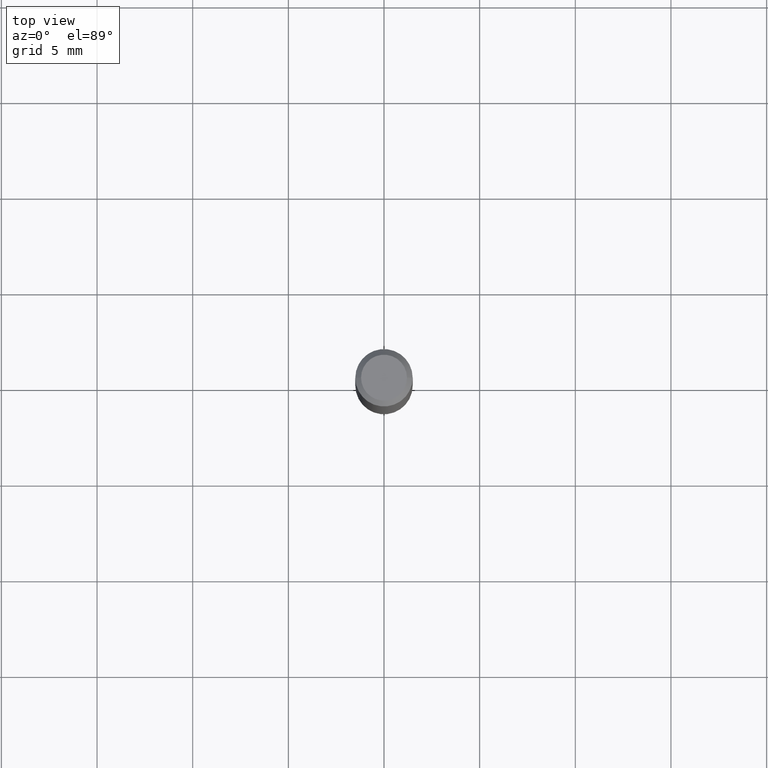
[diagram: clean part render]
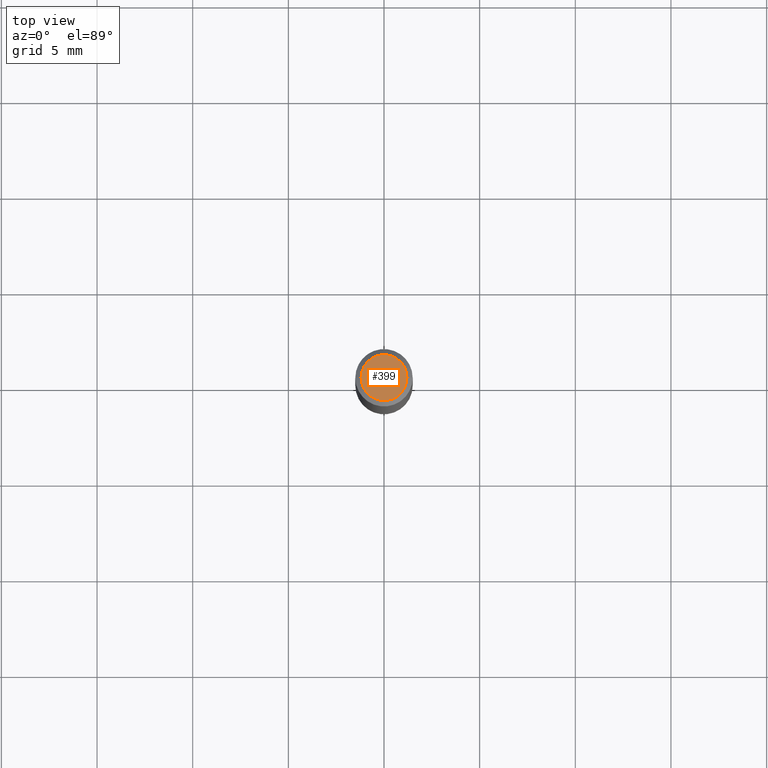
[diagram: same view with one face highlighted and labeled with its STEP entity id]
A machine part, top view. The second image highlights one B-rep face of the part: STEP entity #399.
In plain terms, the highlighted planar face has unit normal (0, -0, -1).
Its self-contained STEP definition (entity closure, byte-faithful):
#21 = AXIS2_PLACEMENT_3D ( 'NONE', #322, #275, #433 ) ;
#22 = FACE_OUTER_BOUND ( 'NONE', #57, .T. ) ;
#23 = DIRECTION ( 'NONE',  ( 2.438088387897960049E-29, -3.491481338843145188E-15, -1.000000000000000000 ) ) ;
#29 = AXIS2_PLACEMENT_3D ( 'NONE', #427, #75, #195 ) ;
#49 = AXIS2_PLACEMENT_3D ( 'NONE', #365, #23, #402 ) ;
#52 = EDGE_CURVE ( 'NONE', #256, #251, #240, .T. ) ;
#57 = EDGE_LOOP ( 'NONE', ( #284, #282 ) ) ;
#75 = DIRECTION ( 'NONE',  ( -2.445468806185136597E-29, 3.491481338843145583E-15, 1.000000000000000000 ) ) ;
#167 = CARTESIAN_POINT ( 'NONE',  ( 0.04724000000000000421, -3.852183633974369345E-16, -3.380025165621689721E-19 ) ) ;
#195 = DIRECTION ( 'NONE',  ( 1.000000000000000000, -6.982962677686266711E-15, 4.876185090822587894E-29 ) ) ;
#207 = PLANE ( 'NONE',  #49 ) ;
#240 = CIRCLE ( 'NONE', #29, 0.04724000000000000421 ) ;
#251 = VERTEX_POINT ( 'NONE', #316 ) ;
#256 = VERTEX_POINT ( 'NONE', #167 ) ;
#275 = DIRECTION ( 'NONE',  ( -2.445468806185136597E-29, 3.491481338843145583E-15, 1.000000000000000000 ) ) ;
#282 = ORIENTED_EDGE ( 'NONE', *, *, #52, .T. ) ;
#284 = ORIENTED_EDGE ( 'NONE', *, *, #315, .T. ) ;
#291 = CIRCLE ( 'NONE', #21, 0.04724000000000000421 ) ;
#315 = EDGE_CURVE ( 'NONE', #251, #256, #291, .T. ) ;
#316 = CARTESIAN_POINT ( 'NONE',  ( -0.04724000000000000421, 3.504923541997677355E-16, -3.380025165670481712E-19 ) ) ;
#322 = CARTESIAN_POINT ( 'NONE',  ( 8.265746106709734507E-48, -1.180129479067563789E-33, -3.380025165646692144E-19 ) ) ;
#365 = CARTESIAN_POINT ( 'NONE',  ( 4.132873053354867254E-48, -5.900647395337818946E-34, -1.690012582823346072E-19 ) ) ;
#399 = ADVANCED_FACE ( 'NONE', ( #22 ), #207, .F. ) ;
#402 = DIRECTION ( 'NONE',  ( -1.000000000000000000, 6.982962677686265922E-15, -4.876176775795935793E-29 ) ) ;
#427 = CARTESIAN_POINT ( 'NONE',  ( 8.265746106709734507E-48, -1.180129479067563789E-33, -3.380025165646692144E-19 ) ) ;
#433 = DIRECTION ( 'NONE',  ( 1.000000000000000000, -6.982962677686266711E-15, 4.876185090822587894E-29 ) ) ;